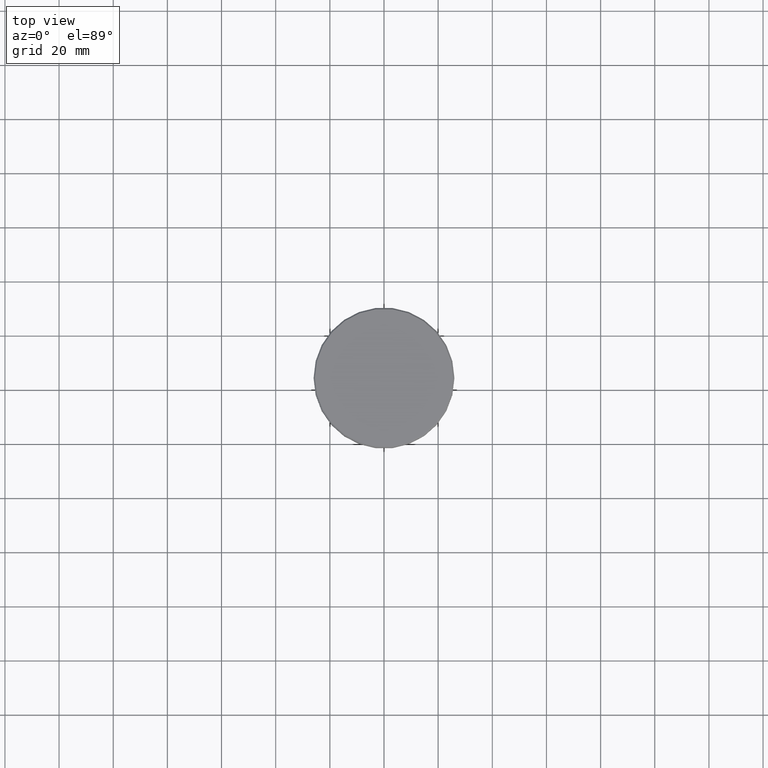
[diagram: clean part render]
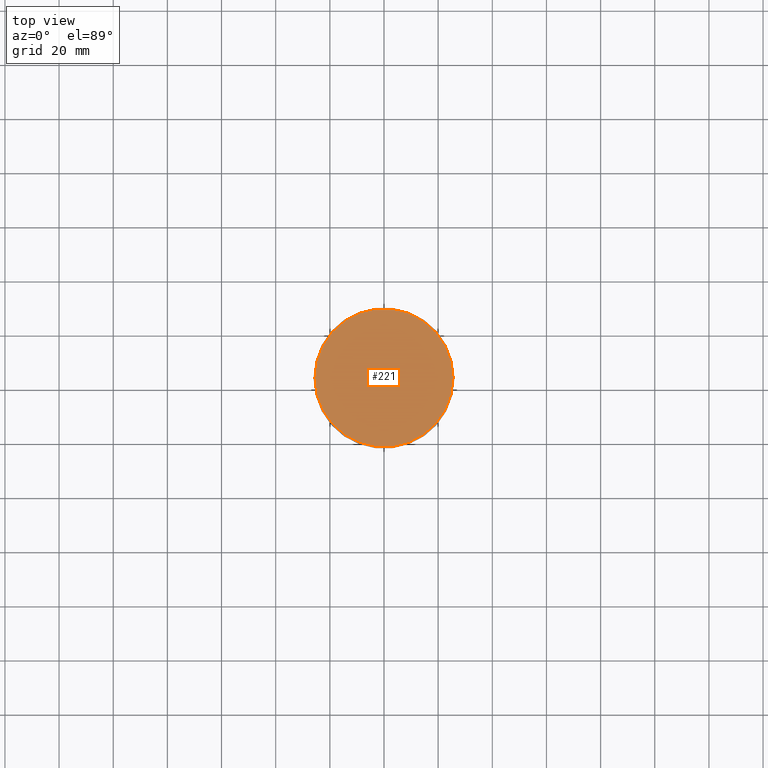
[diagram: same view with one face highlighted and labeled with its STEP entity id]
A machine part, top view. The second image highlights one B-rep face of the part: STEP entity #221.
In plain terms, the highlighted planar face has unit normal (0, -0, 1).
Its self-contained STEP definition (entity closure, byte-faithful):
#33 = FACE_OUTER_BOUND ( 'NONE', #568, .T. ) ;
#107 = ORIENTED_EDGE ( 'NONE', *, *, #607, .T. ) ;
#129 = DIRECTION ( 'NONE',  ( 1.000000000000000000, 0.000000000000000000, 0.000000000000000000 ) ) ;
#174 = AXIS2_PLACEMENT_3D ( 'NONE', #311, #1125, #129 ) ;
#185 = VERTEX_POINT ( 'NONE', #292 ) ;
#194 = CARTESIAN_POINT ( 'NONE',  ( 0.000000000000000000, 0.000000000000000000, 0.000000000000000000 ) ) ;
#195 = CIRCLE ( 'NONE', #1022, 25.49999999999994316 ) ;
#221 = ADVANCED_FACE ( 'NONE', ( #33 ), #224, .T. ) ;
#224 = PLANE ( 'NONE',  #174 ) ;
#292 = CARTESIAN_POINT ( 'NONE',  ( -25.49999999999994316, 0.000000000000000000, 0.000000000000000000 ) ) ;
#311 = CARTESIAN_POINT ( 'NONE',  ( 0.000000000000000000, 0.000000000000000000, 0.000000000000000000 ) ) ;
#398 = DIRECTION ( 'NONE',  ( -0.000000000000000000, -0.000000000000000000, 1.000000000000000000 ) ) ;
#568 = EDGE_LOOP ( 'NONE', ( #107, #981 ) ) ;
#578 = DIRECTION ( 'NONE',  ( 1.000000000000000000, 0.000000000000000000, 0.000000000000000000 ) ) ;
#607 = EDGE_CURVE ( 'NONE', #185, #943, #195, .T. ) ;
#671 = CARTESIAN_POINT ( 'NONE',  ( 25.49999999999994316, 3.153465507804430854E-15, 0.000000000000000000 ) ) ;
#709 = DIRECTION ( 'NONE',  ( -0.000000000000000000, -0.000000000000000000, 1.000000000000000000 ) ) ;
#767 = CIRCLE ( 'NONE', #1171, 25.49999999999994316 ) ;
#813 = EDGE_CURVE ( 'NONE', #943, #185, #767, .T. ) ;
#943 = VERTEX_POINT ( 'NONE', #671 ) ;
#981 = ORIENTED_EDGE ( 'NONE', *, *, #813, .T. ) ;
#1022 = AXIS2_PLACEMENT_3D ( 'NONE', #194, #398, #578 ) ;
#1086 = DIRECTION ( 'NONE',  ( 1.000000000000000000, 0.000000000000000000, 0.000000000000000000 ) ) ;
#1125 = DIRECTION ( 'NONE',  ( 0.000000000000000000, -0.000000000000000000, 1.000000000000000000 ) ) ;
#1171 = AXIS2_PLACEMENT_3D ( 'NONE', #1174, #709, #1086 ) ;
#1174 = CARTESIAN_POINT ( 'NONE',  ( 0.000000000000000000, 0.000000000000000000, 0.000000000000000000 ) ) ;